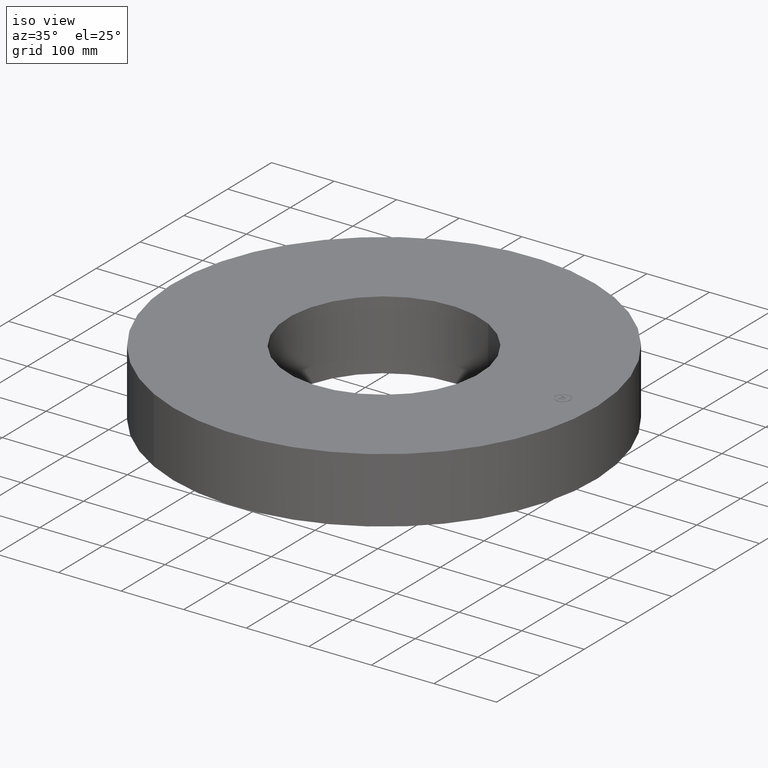
[diagram: clean part render]
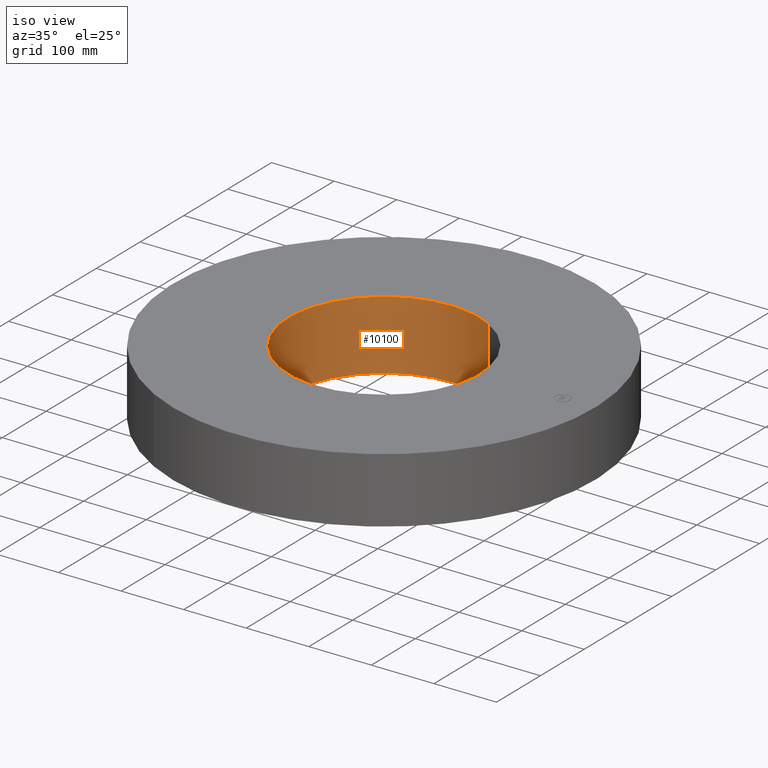
[diagram: same view with one face highlighted and labeled with its STEP entity id]
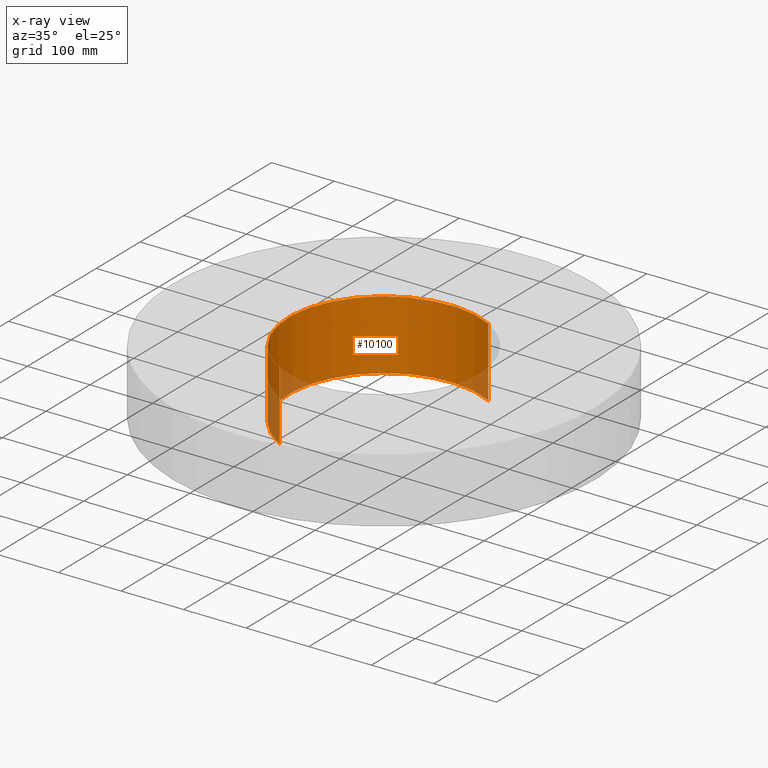
[diagram: x-ray of the same camera — body ghosted, the highlighted face saturated]
A machine part, iso view. The second image highlights one B-rep face of the part: STEP entity #10100.
The next image is the same camera in x-ray: the body ghosted, the highlighted face saturated — about 9% of this face is hidden behind the body in this view.
In plain terms, the highlighted cylindrical surface (partial cylindrical patch) has radius 152.4 mm, axis along (0, 0, -1).
Its self-contained STEP definition (entity closure, byte-faithful):
#10050=AXIS2_PLACEMENT_3D('Circle Axis2P3D',#10048,#10049,$) ;
#10061=AXIS2_PLACEMENT_3D('Cylinder Axis2P3D',#10058,#10059,#10060) ;
#10091=AXIS2_PLACEMENT_3D('Circle Axis2P3D',#10089,#10090,$) ;
#10043=CARTESIAN_POINT('Vertex',(2.87655323164,5.26549537136,-0.250000000001)) ;
#10045=CARTESIAN_POINT('Vertex',(-2.87655323164,-5.26549537136,-0.250000000001)) ;
#10048=CARTESIAN_POINT('Axis2P3D Location',(0.,0.,-0.250000000001)) ;
#10058=CARTESIAN_POINT('Axis2P3D Location',(0.,0.,1.93500000001)) ;
#10067=CARTESIAN_POINT('Vertex',(2.87655323164,5.26549537136,4.12000000002)) ;
#10069=CARTESIAN_POINT('Vertex',(-2.87655323164,-5.26549537136,4.12000000002)) ;
#10072=CARTESIAN_POINT('Line Origine',(2.87655323164,5.26549537136,1.93500000001)) ;
#10077=CARTESIAN_POINT('Line Origine',(-2.87655323164,-5.26549537136,1.93500000001)) ;
#10089=CARTESIAN_POINT('Axis2P3D Location',(0.,0.,4.12000000002)) ;
#10049=DIRECTION('Axis2P3D Direction',(0.,0.,-0.0393700787402)) ;
#10059=DIRECTION('Axis2P3D Direction',(0.,0.,-0.0393700787402)) ;
#10060=DIRECTION('Axis2P3D XDirection',(-0.0188750212049,-0.0345504945626,0.)) ;
#10073=DIRECTION('Vector Direction',(0.,0.,-0.0393700787402)) ;
#10078=DIRECTION('Vector Direction',(0.,0.,-0.0393700787402)) ;
#10090=DIRECTION('Axis2P3D Direction',(0.,0.,-0.0393700787402)) ;
#10074=VECTOR('Line Direction',#10073,0.0393700787402) ;
#10079=VECTOR('Line Direction',#10078,0.0393700787402) ;
#10095=ORIENTED_EDGE('',*,*,#10093,.F.) ;
#10096=ORIENTED_EDGE('',*,*,#10081,.T.) ;
#10097=ORIENTED_EDGE('',*,*,#10052,.T.) ;
#10098=ORIENTED_EDGE('',*,*,#10076,.F.) ;
#10100=ADVANCED_FACE('PartBody',(#10099),#10062,.F.) ;
#10051=CIRCLE('generated circle',#10050,6.00000000002) ;
#10092=CIRCLE('generated circle',#10091,6.00000000002) ;
#10062=CYLINDRICAL_SURFACE('generated cylinder',#10061,6.00000000002) ;
#10052=EDGE_CURVE('',#10046,#10044,#10051,.T.) ;
#10076=EDGE_CURVE('',#10068,#10044,#10075,.T.) ;
#10081=EDGE_CURVE('',#10070,#10046,#10080,.T.) ;
#10093=EDGE_CURVE('',#10070,#10068,#10092,.T.) ;
#10094=EDGE_LOOP('',(#10095,#10096,#10097,#10098)) ;
#10099=FACE_OUTER_BOUND('',#10094,.T.) ;
#10075=LINE('Line',#10072,#10074) ;
#10080=LINE('Line',#10077,#10079) ;
#10044=VERTEX_POINT('',#10043) ;
#10046=VERTEX_POINT('',#10045) ;
#10068=VERTEX_POINT('',#10067) ;
#10070=VERTEX_POINT('',#10069) ;